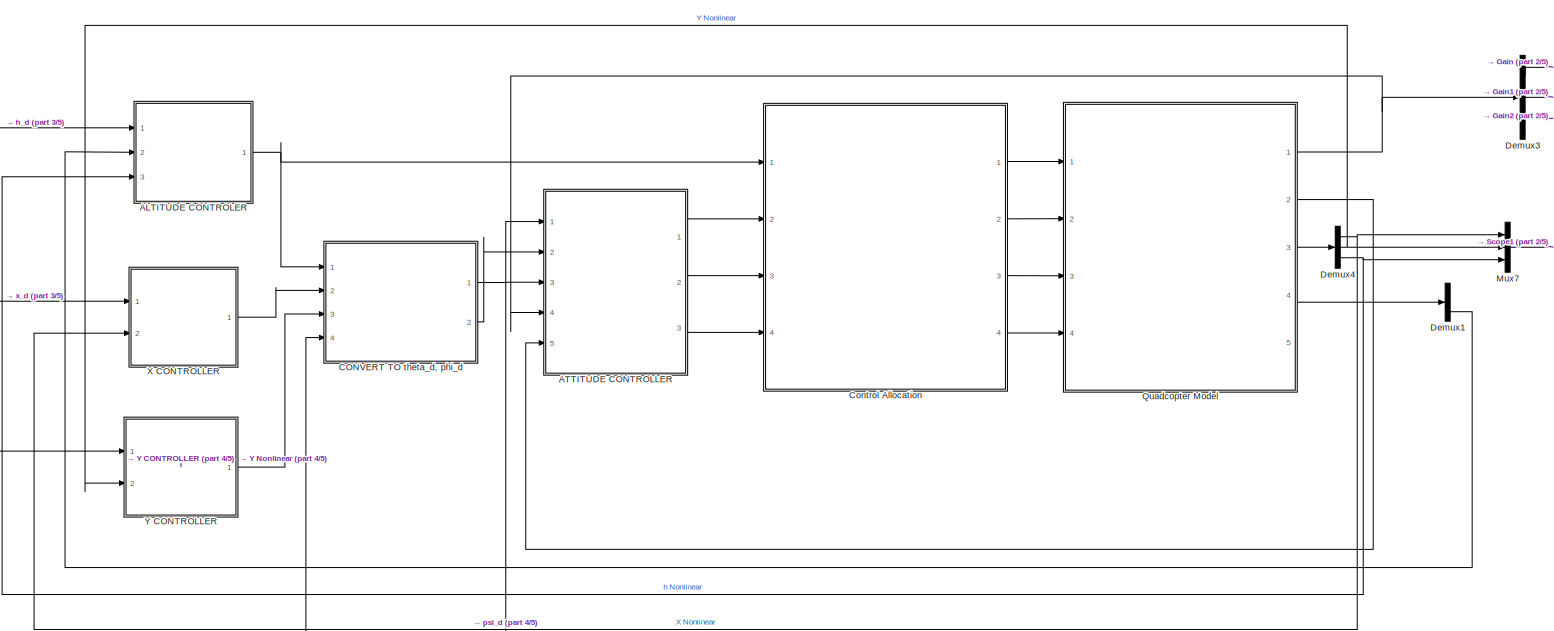
[diagram: root canvas - part 1/5, full width, top band]
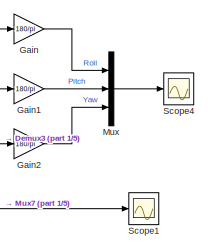
[diagram: root canvas - part 2/5, top right region]
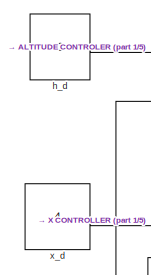
[diagram: root canvas - part 3/5, top left region]
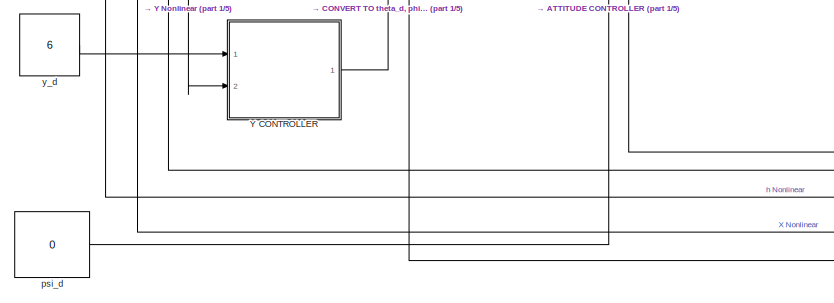
[diagram: root canvas - part 4/5, middle left region]
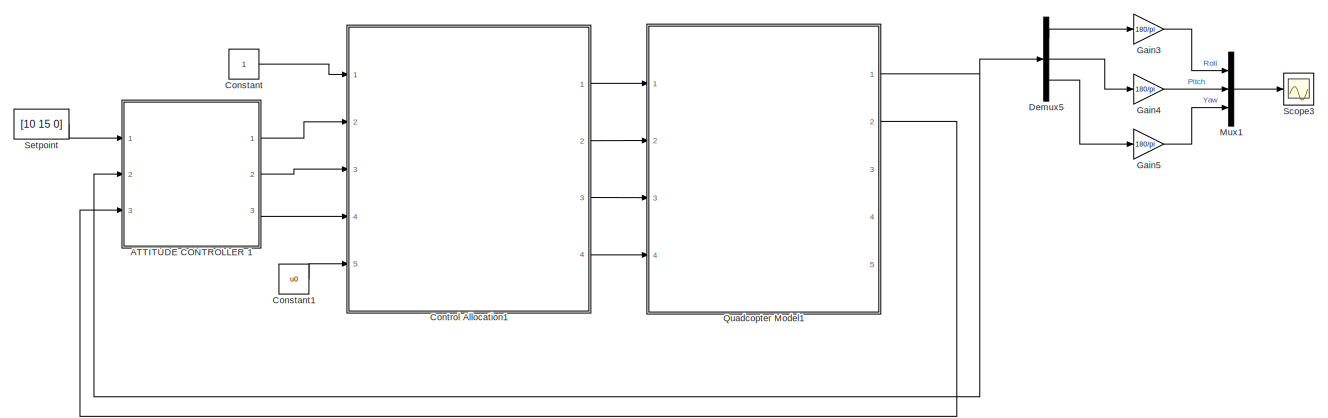
[diagram: root canvas - part 5/5, bottom center region]
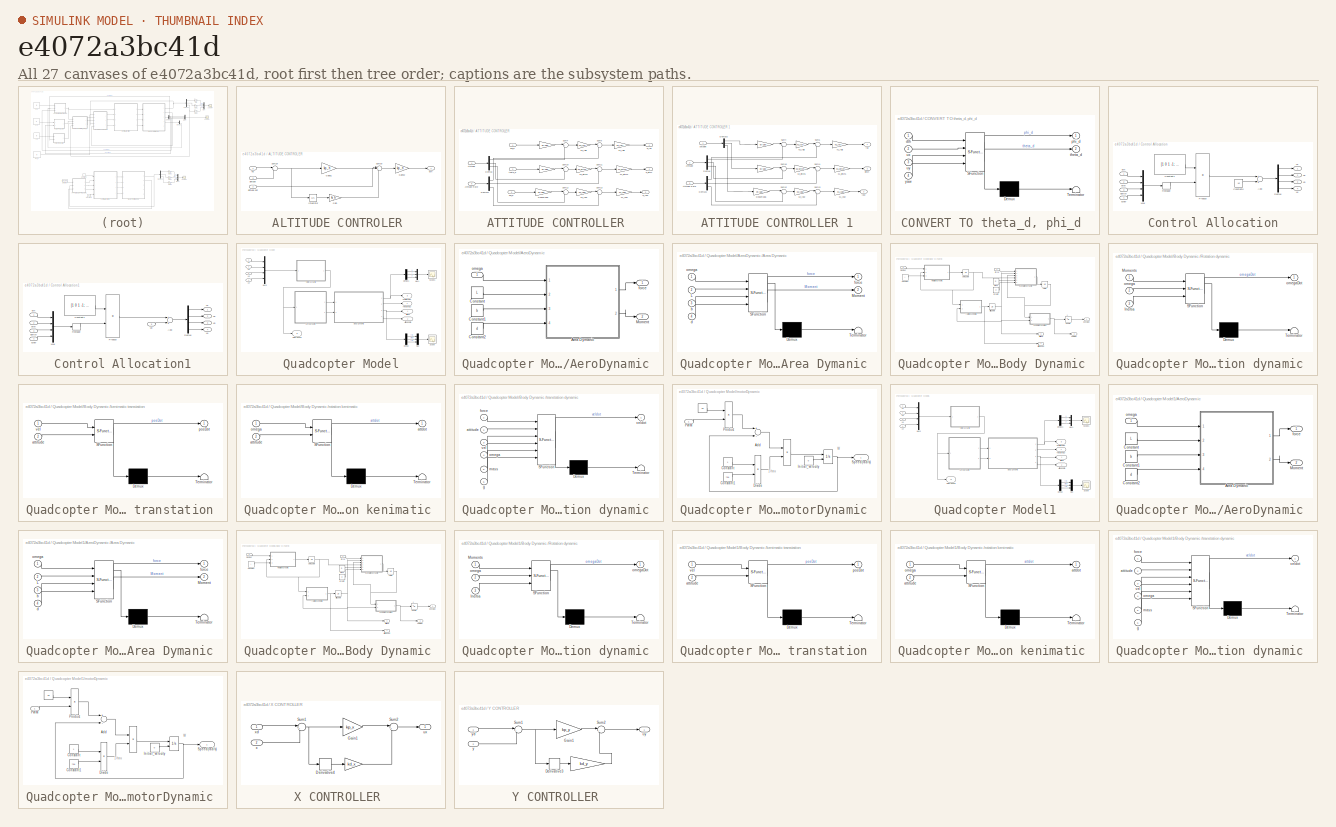
[diagram: thumbnail index - all 27 canvases of the model, root first then tree order]
MODEL slx_e4072a3bc41d
KIND model
CONFIG AbsTol = auto
CONFIG FixedStep = auto
CONFIG InitFcn = parameters
CONFIG MaxStep = auto
CONFIG MinStep = auto
CONFIG PreLoadFcn = parameters
CONFIG RelTol = 1e-3
CONFIG SampleTimeConstraint = Unconstrained
CONFIG Solver = VariableStepAuto
CONFIG SolverMode = Auto
CONFIG SolverName = VariableStepAuto
CONFIG StartTime = 0.0
CONFIG StopTime = 30
BLOCK [SubSystem] ALTITUDE CONTROLER 
  Ports = [3, 1]
  RequestExecContextInheritance = off
  Variant = off
BLOCK [Gain] ALTITUDE CONTROLER /Gain
  Gain = ki_h
  OutDataTypeStr = Inherit: Inherit via internal rule
  ParamDataTypeStr = Inherit: Inherit via internal rule
  SaturateOnIntegerOverflow = off
BLOCK [Gain] ALTITUDE CONTROLER /Gain31
  Gain = kp_h
  OutDataTypeStr = Inherit: Inherit via internal rule
  ParamDataTypeStr = Inherit: Inherit via internal rule
  SaturateOnIntegerOverflow = off
BLOCK [Gain] ALTITUDE CONTROLER /Gain32
  Gain = kp_h
  OutDataTypeStr = Inherit: Inherit via internal rule
  ParamDataTypeStr = Inherit: Inherit via internal rule
  SaturateOnIntegerOverflow = off
BLOCK [Integrator] ALTITUDE CONTROLER /Integrator
  Ports = [1, 1]
BLOCK [Sum] ALTITUDE CONTROLER /Sum29
  IconShape = round
  InputSameDT = off
  Inputs = |++
  OutDataTypeStr = Inherit: Inherit via internal rule
  Ports = [2, 1]
  SaturateOnIntegerOverflow = off
BLOCK [Sum] ALTITUDE CONTROLER /Sum30
  IconShape = round
  InputSameDT = off
  Inputs = |+++
  OutDataTypeStr = Inherit: Inherit via internal rule
  Ports = [3, 1]
  SaturateOnIntegerOverflow = off
BLOCK [Inport] ALTITUDE CONTROLER /altitude 
  Description = hd
  IconDisplay = Port number
  Port = 3
BLOCK [Inport] ALTITUDE CONTROLER /altitude dot 
  Description = hd
  IconDisplay = Port number
  Port = 2
BLOCK [Outport] ALTITUDE CONTROLER /dth
  IconDisplay = Port number
BLOCK [Inport] ALTITUDE CONTROLER /hd
  Description = hd
  IconDisplay = Port number
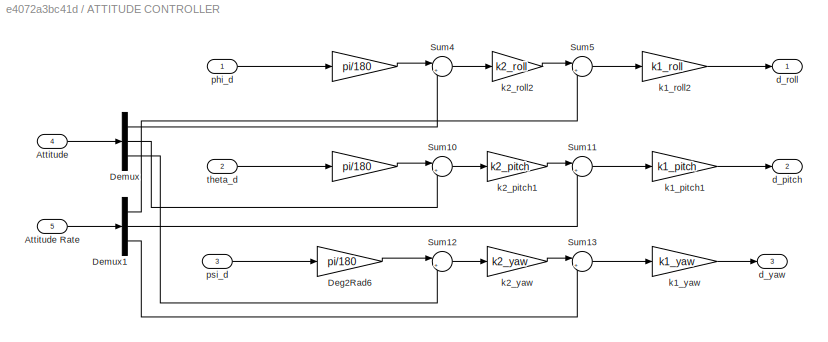
BLOCK [SubSystem] ATTITUDE CONTROLLER 
  Ports = [5, 3]
  RequestExecContextInheritance = off
  Variant = off
BLOCK [Gain] ATTITUDE CONTROLLER / 
  Gain = pi/180
  OutDataTypeStr = Inherit: Inherit via internal rule
  ParamDataTypeStr = Inherit: Inherit via internal rule
  SaturateOnIntegerOverflow = off
BLOCK [Inport] ATTITUDE CONTROLLER /Attitude 
  IconDisplay = Port number
  Port = 4
BLOCK [Inport] ATTITUDE CONTROLLER /Attitude Rate 
  IconDisplay = Port number
  Port = 5
BLOCK [Gain] ATTITUDE CONTROLLER /Deg2Rad6
  Gain = pi/180
  OutDataTypeStr = Inherit: Inherit via internal rule
  ParamDataTypeStr = Inherit: Inherit via internal rule
  SaturateOnIntegerOverflow = off
BLOCK [Demux] ATTITUDE CONTROLLER /Demux
  DisplayOption = bar
  Outputs = 3
  Ports = [1, 3]
BLOCK [Demux] ATTITUDE CONTROLLER /Demux1
  DisplayOption = bar
  Outputs = 3
  Ports = [1, 3]
BLOCK [Sum] ATTITUDE CONTROLLER /Sum10
  IconShape = round
  InputSameDT = off
  Inputs = |+-
  OutDataTypeStr = Inherit: Inherit via internal rule
  Ports = [2, 1]
  SaturateOnIntegerOverflow = off
BLOCK [Sum] ATTITUDE CONTROLLER /Sum11
  IconShape = round
  InputSameDT = off
  Inputs = |+-
  OutDataTypeStr = Inherit: Inherit via internal rule
  Ports = [2, 1]
  SaturateOnIntegerOverflow = off
BLOCK [Sum] ATTITUDE CONTROLLER /Sum12
  IconShape = round
  InputSameDT = off
  Inputs = |+-
  OutDataTypeStr = Inherit: Inherit via internal rule
  Ports = [2, 1]
  SaturateOnIntegerOverflow = off
BLOCK [Sum] ATTITUDE CONTROLLER /Sum13
  IconShape = round
  InputSameDT = off
  Inputs = |+-
  OutDataTypeStr = Inherit: Inherit via internal rule
  Ports = [2, 1]
  SaturateOnIntegerOverflow = off
BLOCK [Sum] ATTITUDE CONTROLLER /Sum4
  IconShape = round
  InputSameDT = off
  Inputs = |+-
  OutDataTypeStr = Inherit: Inherit via internal rule
  Ports = [2, 1]
  SaturateOnIntegerOverflow = off
BLOCK [Sum] ATTITUDE CONTROLLER /Sum5
  IconShape = round
  InputSameDT = off
  Inputs = |+-
  OutDataTypeStr = Inherit: Inherit via internal rule
  Ports = [2, 1]
  SaturateOnIntegerOverflow = off
BLOCK [Outport] ATTITUDE CONTROLLER /d_pitch 
  IconDisplay = Port number
  Port = 2
BLOCK [Outport] ATTITUDE CONTROLLER /d_roll 
  IconDisplay = Port number
BLOCK [Outport] ATTITUDE CONTROLLER /d_yaw 
  IconDisplay = Port number
  Port = 3
BLOCK [Gain] ATTITUDE CONTROLLER /k1_pitch1
  Gain = k1_pitch
  OutDataTypeStr = Inherit: Inherit via internal rule
  ParamDataTypeStr = Inherit: Inherit via internal rule
  SaturateOnIntegerOverflow = off
BLOCK [Gain] ATTITUDE CONTROLLER /k1_roll2
  Gain = k1_roll
  OutDataTypeStr = Inherit: Inherit via internal rule
  ParamDataTypeStr = Inherit: Inherit via internal rule
  SaturateOnIntegerOverflow = off
BLOCK [Gain] ATTITUDE CONTROLLER /k1_yaw
  Gain = k1_yaw
  OutDataTypeStr = Inherit: Inherit via internal rule
  ParamDataTypeStr = Inherit: Inherit via internal rule
  SaturateOnIntegerOverflow = off
BLOCK [Gain] ATTITUDE CONTROLLER /k2_pitch1
  Gain = k2_pitch
  OutDataTypeStr = Inherit: Inherit via internal rule
  ParamDataTypeStr = Inherit: Inherit via internal rule
  SaturateOnIntegerOverflow = off
BLOCK [Gain] ATTITUDE CONTROLLER /k2_roll2
  Gain = k2_roll
  OutDataTypeStr = Inherit: Inherit via internal rule
  ParamDataTypeStr = Inherit: Inherit via internal rule
  SaturateOnIntegerOverflow = off
BLOCK [Gain] ATTITUDE CONTROLLER /k2_yaw
  Gain = k2_yaw
  OutDataTypeStr = Inherit: Inherit via internal rule
  ParamDataTypeStr = Inherit: Inherit via internal rule
  SaturateOnIntegerOverflow = off
BLOCK [Inport] ATTITUDE CONTROLLER /phi_d
  IconDisplay = Port number
BLOCK [Inport] ATTITUDE CONTROLLER /psi_d 
  IconDisplay = Port number
  Port = 3
BLOCK [Inport] ATTITUDE CONTROLLER /theta_d
  IconDisplay = Port number
  Port = 2
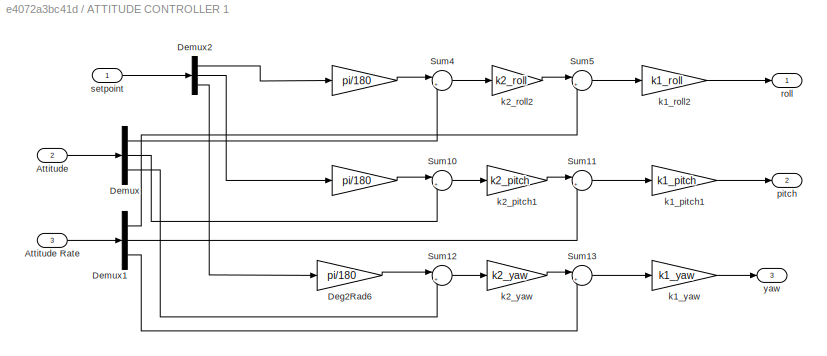
BLOCK [SubSystem] ATTITUDE CONTROLLER 1
  Ports = [3, 3]
  RequestExecContextInheritance = off
  Variant = off
BLOCK [Gain] ATTITUDE CONTROLLER 1/ 
  Gain = pi/180
  OutDataTypeStr = Inherit: Inherit via internal rule
  ParamDataTypeStr = Inherit: Inherit via internal rule
  SaturateOnIntegerOverflow = off
BLOCK [Inport] ATTITUDE CONTROLLER 1/Attitude 
  IconDisplay = Port number
  Port = 2
BLOCK [Inport] ATTITUDE CONTROLLER 1/Attitude Rate 
  IconDisplay = Port number
  Port = 3
BLOCK [Gain] ATTITUDE CONTROLLER 1/Deg2Rad6
  Gain = pi/180
  OutDataTypeStr = Inherit: Inherit via internal rule
  ParamDataTypeStr = Inherit: Inherit via internal rule
  SaturateOnIntegerOverflow = off
BLOCK [Demux] ATTITUDE CONTROLLER 1/Demux
  DisplayOption = bar
  Outputs = 3
  Ports = [1, 3]
BLOCK [Demux] ATTITUDE CONTROLLER 1/Demux1
  DisplayOption = bar
  Outputs = 3
  Ports = [1, 3]
BLOCK [Demux] ATTITUDE CONTROLLER 1/Demux2
  DisplayOption = bar
  Outputs = 3
  Ports = [1, 3]
BLOCK [Sum] ATTITUDE CONTROLLER 1/Sum10
  IconShape = round
  InputSameDT = off
  Inputs = |+-
  OutDataTypeStr = Inherit: Inherit via internal rule
  Ports = [2, 1]
  SaturateOnIntegerOverflow = off
BLOCK [Sum] ATTITUDE CONTROLLER 1/Sum11
  IconShape = round
  InputSameDT = off
  Inputs = |+-
  OutDataTypeStr = Inherit: Inherit via internal rule
  Ports = [2, 1]
  SaturateOnIntegerOverflow = off
BLOCK [Sum] ATTITUDE CONTROLLER 1/Sum12
  IconShape = round
  InputSameDT = off
  Inputs = |+-
  OutDataTypeStr = Inherit: Inherit via internal rule
  Ports = [2, 1]
  SaturateOnIntegerOverflow = off
BLOCK [Sum] ATTITUDE CONTROLLER 1/Sum13
  IconShape = round
  InputSameDT = off
  Inputs = |+-
  OutDataTypeStr = Inherit: Inherit via internal rule
  Ports = [2, 1]
  SaturateOnIntegerOverflow = off
BLOCK [Sum] ATTITUDE CONTROLLER 1/Sum4
  IconShape = round
  InputSameDT = off
  Inputs = |+-
  OutDataTypeStr = Inherit: Inherit via internal rule
  Ports = [2, 1]
  SaturateOnIntegerOverflow = off
BLOCK [Sum] ATTITUDE CONTROLLER 1/Sum5
  IconShape = round
  InputSameDT = off
  Inputs = |+-
  OutDataTypeStr = Inherit: Inherit via internal rule
  Ports = [2, 1]
  SaturateOnIntegerOverflow = off
BLOCK [Gain] ATTITUDE CONTROLLER 1/k1_pitch1
  Gain = k1_pitch
  OutDataTypeStr = Inherit: Inherit via internal rule
  ParamDataTypeStr = Inherit: Inherit via internal rule
  SaturateOnIntegerOverflow = off
BLOCK [Gain] ATTITUDE CONTROLLER 1/k1_roll2
  Gain = k1_roll
  OutDataTypeStr = Inherit: Inherit via internal rule
  ParamDataTypeStr = Inherit: Inherit via internal rule
  SaturateOnIntegerOverflow = off
BLOCK [Gain] ATTITUDE CONTROLLER 1/k1_yaw
  Gain = k1_yaw
  OutDataTypeStr = Inherit: Inherit via internal rule
  ParamDataTypeStr = Inherit: Inherit via internal rule
  SaturateOnIntegerOverflow = off
BLOCK [Gain] ATTITUDE CONTROLLER 1/k2_pitch1
  Gain = k2_pitch
  OutDataTypeStr = Inherit: Inherit via internal rule
  ParamDataTypeStr = Inherit: Inherit via internal rule
  SaturateOnIntegerOverflow = off
BLOCK [Gain] ATTITUDE CONTROLLER 1/k2_roll2
  Gain = k2_roll
  OutDataTypeStr = Inherit: Inherit via internal rule
  ParamDataTypeStr = Inherit: Inherit via internal rule
  SaturateOnIntegerOverflow = off
BLOCK [Gain] ATTITUDE CONTROLLER 1/k2_yaw
  Gain = k2_yaw
  OutDataTypeStr = Inherit: Inherit via internal rule
  ParamDataTypeStr = Inherit: Inherit via internal rule
  SaturateOnIntegerOverflow = off
BLOCK [Outport] ATTITUDE CONTROLLER 1/pitch 
  IconDisplay = Port number
  Port = 2
BLOCK [Outport] ATTITUDE CONTROLLER 1/roll 
  IconDisplay = Port number
BLOCK [Inport] ATTITUDE CONTROLLER 1/setpoint 
  IconDisplay = Port number
BLOCK [Outport] ATTITUDE CONTROLLER 1/yaw 
  IconDisplay = Port number
  Port = 3
BLOCK [SubSystem] CONVERT TO theta_d, phi_d 
  ErrorFcn = Stateflow.Translate.translate
  PermitHierarchicalResolution = ExplicitOnly
  Ports = [4, 2]
  RequestExecContextInheritance = off
  SFBlockType = MATLAB Function
  TreatAsAtomicUnit = on
  Variant = off
BLOCK [Demux] CONVERT TO theta_d, phi_d / Demux 
  DisplayOption = bar
  Outputs = 1
  Ports = [1, 1]
BLOCK [S-Function] CONVERT TO theta_d, phi_d / SFunction 
  EnableBusSupport = on
  FunctionName = sf_sfun
  PortCounts = [4 3]
  Ports = [4, 3]
  SFunctionDeploymentMode = off
  Tag = Stateflow S-Function Control_UAV_Phat 12
BLOCK [Terminator] CONVERT TO theta_d, phi_d / Terminator 
BLOCK [Inport] CONVERT TO theta_d, phi_d /dth
  IconDisplay = Port number
BLOCK [Outport] CONVERT TO theta_d, phi_d /phi_d
  IconDisplay = Port number
BLOCK [Outport] CONVERT TO theta_d, phi_d /theta_d
  IconDisplay = Port number
  Port = 2
BLOCK [Inport] CONVERT TO theta_d, phi_d /ux
  IconDisplay = Port number
  Port = 2
BLOCK [Inport] CONVERT TO theta_d, phi_d /uy
  IconDisplay = Port number
  Port = 3
BLOCK [Inport] CONVERT TO theta_d, phi_d /yaw
  IconDisplay = Port number
  Port = 4
BLOCK [Constant] Constant
BLOCK [Constant] Constant1
  Value = u0
BLOCK [SubSystem] Control Allocation
  Ports = [4, 4]
  RequestExecContextInheritance = off
  Variant = off
BLOCK [Sum] Control Allocation/Add
  InputSameDT = off
  OutDataTypeStr = Inherit: Inherit via internal rule
  Ports = [2, 1]
  SaturateOnIntegerOverflow = off
BLOCK [Constant] Control Allocation/Constant1
  Value = [1 0 1 -1; 1 -1 0 1; 1 0 -1 -1; 1 1 0 1]
BLOCK [Constant] Control Allocation/Constant6
  Value = u0
BLOCK [Demux] Control Allocation/Demux
  DisplayOption = bar
  Ports = [1, 4]
BLOCK [Mux] Control Allocation/Mux
  DisplayOption = bar
  Ports = [4, 1]
BLOCK [Product] Control Allocation/Product
  InputSameDT = off
  Multiplication = Matrix(*)
  OutDataTypeStr = Inherit: Inherit via internal rule
  Ports = [2, 1]
  RndMeth = Floor
  SaturateOnIntegerOverflow = off
BLOCK [Reshape] Control Allocation/Reshape
  OutputDimensionality = Column vector (2-D)
  Ports = [1, 1]
BLOCK [Inport] Control Allocation/dpitch
  IconDisplay = Port number
  Port = 3
BLOCK [Inport] Control Allocation/droll
  IconDisplay = Port number
  Port = 2
BLOCK [Inport] Control Allocation/dth
  IconDisplay = Port number
BLOCK [Inport] Control Allocation/dyaw
  IconDisplay = Port number
  Port = 4
BLOCK [Outport] Control Allocation/u1 
  IconDisplay = Port number
BLOCK [Outport] Control Allocation/u2 
  IconDisplay = Port number
  Port = 2
BLOCK [Outport] Control Allocation/u3 
  IconDisplay = Port number
  Port = 3
BLOCK [Outport] Control Allocation/u4 
  IconDisplay = Port number
  Port = 4
BLOCK [SubSystem] Control Allocation1
  Ports = [5, 4]
  RequestExecContextInheritance = off
  Variant = off
BLOCK [Sum] Control Allocation1/Add
  InputSameDT = off
  OutDataTypeStr = Inherit: Inherit via internal rule
  Ports = [2, 1]
  SaturateOnIntegerOverflow = off
BLOCK [Constant] Control Allocation1/Constant1
  Value = [1 0 1 -1; 1 -1 0 1; 1 0 -1 -1; 1 1 0 1]
BLOCK [Demux] Control Allocation1/Demux
  DisplayOption = bar
  Ports = [1, 4]
BLOCK [Mux] Control Allocation1/Mux
  DisplayOption = bar
  Ports = [4, 1]
BLOCK [Product] Control Allocation1/Product
  InputSameDT = off
  Multiplication = Matrix(*)
  OutDataTypeStr = Inherit: Inherit via internal rule
  Ports = [2, 1]
  RndMeth = Floor
  SaturateOnIntegerOverflow = off
BLOCK [Reshape] Control Allocation1/Reshape
  OutputDimensionality = Column vector (2-D)
  Ports = [1, 1]
BLOCK [Inport] Control Allocation1/dpitch
  IconDisplay = Port number
  Port = 3
BLOCK [Inport] Control Allocation1/droll
  IconDisplay = Port number
  Port = 2
BLOCK [Inport] Control Allocation1/dth
  IconDisplay = Port number
BLOCK [Inport] Control Allocation1/dyaw
  IconDisplay = Port number
  Port = 4
BLOCK [Inport] Control Allocation1/u0 
  IconDisplay = Port number
  Port = 5
BLOCK [Outport] Control Allocation1/u1 
  IconDisplay = Port number
BLOCK [Outport] Control Allocation1/u2 
  IconDisplay = Port number
  Port = 2
BLOCK [Outport] Control Allocation1/u3 
  IconDisplay = Port number
  Port = 3
BLOCK [Outport] Control Allocation1/u4 
  IconDisplay = Port number
  Port = 4
BLOCK [Demux] Demux1
  DisplayOption = bar
  Outputs = 3
  Ports = [1, 3]
BLOCK [Demux] Demux3
  DisplayOption = bar
  Outputs = 3
  Ports = [1, 3]
BLOCK [Demux] Demux4
  DisplayOption = bar
  Outputs = 3
  Ports = [1, 3]
BLOCK [Demux] Demux5
  DisplayOption = bar
  Outputs = 3
  Ports = [1, 3]
BLOCK [Gain] Gain
  Gain = 180/pi
  OutDataTypeStr = Inherit: Inherit via internal rule
  ParamDataTypeStr = Inherit: Inherit via internal rule
  SaturateOnIntegerOverflow = off
BLOCK [Gain] Gain1
  Gain = 180/pi
  OutDataTypeStr = Inherit: Inherit via internal rule
  ParamDataTypeStr = Inherit: Inherit via internal rule
  SaturateOnIntegerOverflow = off
BLOCK [Gain] Gain2
  Gain = 180/pi
  OutDataTypeStr = Inherit: Inherit via internal rule
  ParamDataTypeStr = Inherit: Inherit via internal rule
  SaturateOnIntegerOverflow = off
BLOCK [Gain] Gain3
  Gain = 180/pi
  OutDataTypeStr = Inherit: Inherit via internal rule
  ParamDataTypeStr = Inherit: Inherit via internal rule
  SaturateOnIntegerOverflow = off
BLOCK [Gain] Gain4
  Gain = 180/pi
  OutDataTypeStr = Inherit: Inherit via internal rule
  ParamDataTypeStr = Inherit: Inherit via internal rule
  SaturateOnIntegerOverflow = off
BLOCK [Gain] Gain5
  Gain = 180/pi
  OutDataTypeStr = Inherit: Inherit via internal rule
  ParamDataTypeStr = Inherit: Inherit via internal rule
  SaturateOnIntegerOverflow = off
BLOCK [Mux] Mux
  DisplayOption = bar
  Inputs = 3
  Ports = [3, 1]
BLOCK [Mux] Mux1
  DisplayOption = bar
  Inputs = 3
  Ports = [3, 1]
BLOCK [Mux] Mux7
  DisplayOption = bar
  Inputs = 3
  Ports = [3, 1]
BLOCK [SubSystem] Quadcopter Model
  Ports = [4, 5]
  RequestExecContextInheritance = off
  Variant = off
BLOCK [SubSystem] Quadcopter Model/AeroDynamic 
  Ports = [1, 2]
  RequestExecContextInheritance = off
  Variant = off
BLOCK [SubSystem] Quadcopter Model/AeroDynamic /Area Dymanic 
  ErrorFcn = Stateflow.Translate.translate
  PermitHierarchicalResolution = ExplicitOnly
  Ports = [4, 2]
  RequestExecContextInheritance = off
  SFBlockType = MATLAB Function
  TreatAsAtomicUnit = on
  Variant = off
BLOCK [Demux] Quadcopter Model/AeroDynamic /Area Dymanic / Demux 
  DisplayOption = bar
  Outputs = 1
  Ports = [1, 1]
BLOCK [S-Function] Quadcopter Model/AeroDynamic /Area Dymanic / SFunction 
  EnableBusSupport = on
  FunctionName = sf_sfun
  PortCounts = [4 3]
  Ports = [4, 3]
  SFunctionDeploymentMode = off
  Tag = Stateflow S-Function Control_UAV_Phat 6
BLOCK [Terminator] Quadcopter Model/AeroDynamic /Area Dymanic / Terminator 
BLOCK [Inport] Quadcopter Model/AeroDynamic /Area Dymanic /L
  IconDisplay = Port number
  Port = 2
BLOCK [Outport] Quadcopter Model/AeroDynamic /Area Dymanic /Moment
  IconDisplay = Port number
  Port = 2
BLOCK [Inport] Quadcopter Model/AeroDynamic /Area Dymanic /b
  IconDisplay = Port number
  Port = 3
BLOCK [Inport] Quadcopter Model/AeroDynamic /Area Dymanic /d
  IconDisplay = Port number
  Port = 4
BLOCK [Outport] Quadcopter Model/AeroDynamic /Area Dymanic /force
  IconDisplay = Port number
BLOCK [Inport] Quadcopter Model/AeroDynamic /Area Dymanic /omega
  IconDisplay = Port number
BLOCK [Constant] Quadcopter Model/AeroDynamic /Constant
  Value = L
BLOCK [Constant] Quadcopter Model/AeroDynamic /Constant1
  Value = b
BLOCK [Constant] Quadcopter Model/AeroDynamic /Constant2
  Value = d
BLOCK [Outport] Quadcopter Model/AeroDynamic /Moment
  IconDisplay = Port number
  Port = 2
BLOCK [Outport] Quadcopter Model/AeroDynamic /force
  IconDisplay = Port number
BLOCK [Inport] Quadcopter Model/AeroDynamic /omega 
  IconDisplay = Port number
BLOCK [Outport] Quadcopter Model/AtitudeRate
  IconDisplay = Port number
  Port = 2
BLOCK [Outport] Quadcopter Model/Attitude
  IconDisplay = Port number
BLOCK [SubSystem] Quadcopter Model/Body Dynamic 
  Ports = [2, 4]
  RequestExecContextInheritance = off
  Variant = off
BLOCK [Integrator] Quadcopter Model/Body Dynamic /AttitudeInit 
  InitialCondition = attitudeInit
  Ports = [1, 1]
BLOCK [Constant] Quadcopter Model/Body Dynamic /Constant
  Value = I
BLOCK [Integrator] Quadcopter Model/Body Dynamic /OmegaInit 
  InitialCondition = omegaInit
  Ports = [1, 1]
BLOCK [SubSystem] Quadcopter Model/Body Dynamic /Rotation dynamic 
  ErrorFcn = Stateflow.Translate.translate
  PermitHierarchicalResolution = ExplicitOnly
  Ports = [3, 1]
  RequestExecContextInheritance = off
  SFBlockType = MATLAB Function
  TreatAsAtomicUnit = on
  Variant = off
BLOCK [Demux] Quadcopter Model/Body Dynamic /Rotation dynamic / Demux 
  DisplayOption = bar
  Outputs = 1
  Ports = [1, 1]
BLOCK [S-Function] Quadcopter Model/Body Dynamic /Rotation dynamic / SFunction 
  EnableBusSupport = on
  FunctionName = sf_sfun
  PortCounts = [3 2]
  Ports = [3, 2]
  SFunctionDeploymentMode = off
  Tag = Stateflow S-Function Control_UAV_Phat 7
BLOCK [Terminator] Quadcopter Model/Body Dynamic /Rotation dynamic / Terminator 
BLOCK [Inport] Quadcopter Model/Body Dynamic /Rotation dynamic /Inertia
  IconDisplay = Port number
  Port = 3
BLOCK [Inport] Quadcopter Model/Body Dynamic /Rotation dynamic /Moments
  IconDisplay = Port number
BLOCK [Inport] Quadcopter Model/Body Dynamic /Rotation dynamic /omega
  IconDisplay = Port number
  Port = 2
BLOCK [Outport] Quadcopter Model/Body Dynamic /Rotation dynamic /omegaDot
  IconDisplay = Port number
BLOCK [Outport] Quadcopter Model/Body Dynamic /attitude 
  IconDisplay = Port number
  Port = 3
BLOCK [Outport] Quadcopter Model/Body Dynamic /attitudeDOt 
  IconDisplay = Port number
  Port = 4
BLOCK [Inport] Quadcopter Model/Body Dynamic /force 
  IconDisplay = Port number
BLOCK [Constant] Quadcopter Model/Body Dynamic /gravity 
  Value = g
BLOCK [SubSystem] Quadcopter Model/Body Dynamic /kenimatic transtation 
  ErrorFcn = Stateflow.Translate.translate
  PermitHierarchicalResolution = ExplicitOnly
  Ports = [2, 1]
  RequestExecContextInheritance = off
  SFBlockType = MATLAB Function
  TreatAsAtomicUnit = on
  Variant = off
BLOCK [Demux] Quadcopter Model/Body Dynamic /kenimatic transtation / Demux 
  DisplayOption = bar
  Outputs = 1
  Ports = [1, 1]
BLOCK [S-Function] Quadcopter Model/Body Dynamic /kenimatic transtation / SFunction 
  EnableBusSupport = on
  FunctionName = sf_sfun
  PortCounts = [2 2]
  Ports = [2, 2]
  SFunctionDeploymentMode = off
  Tag = Stateflow S-Function Control_UAV_Phat 8
BLOCK [Terminator] Quadcopter Model/Body Dynamic /kenimatic transtation / Terminator 
BLOCK [Inport] Quadcopter Model/Body Dynamic /kenimatic transtation /attitude
  IconDisplay = Port number
  Port = 2
BLOCK [Outport] Quadcopter Model/Body Dynamic /kenimatic transtation /posDot
  IconDisplay = Port number
BLOCK [Inport] Quadcopter Model/Body Dynamic /kenimatic transtation /vel
  IconDisplay = Port number
BLOCK [Constant] Quadcopter Model/Body Dynamic /mass
  Value = m
BLOCK [Inport] Quadcopter Model/Body Dynamic /momnet 
  IconDisplay = Port number
  Port = 2
BLOCK [Integrator] Quadcopter Model/Body Dynamic /posInit 
  InitialCondition = posInit
  Ports = [1, 1]
BLOCK [Outport] Quadcopter Model/Body Dynamic /posNED
  IconDisplay = Port number
BLOCK [SubSystem] Quadcopter Model/Body Dynamic /rotation kenimatic 
  ErrorFcn = Stateflow.Translate.translate
  PermitHierarchicalResolution = ExplicitOnly
  Ports = [2, 1]
  RequestExecContextInheritance = off
  SFBlockType = MATLAB Function
  TreatAsAtomicUnit = on
  Variant = off
BLOCK [Demux] Quadcopter Model/Body Dynamic /rotation kenimatic / Demux 
  DisplayOption = bar
  Outputs = 1
  Ports = [1, 1]
BLOCK [S-Function] Quadcopter Model/Body Dynamic /rotation kenimatic / SFunction 
  EnableBusSupport = on
  FunctionName = sf_sfun
  PortCounts = [2 2]
  Ports = [2, 2]
  SFunctionDeploymentMode = off
  Tag = Stateflow S-Function Control_UAV_Phat 9
BLOCK [Terminator] Quadcopter Model/Body Dynamic /rotation kenimatic / Terminator 
BLOCK [Outport] Quadcopter Model/Body Dynamic /rotation kenimatic /attdot
  IconDisplay = Port number
BLOCK [Inport] Quadcopter Model/Body Dynamic /rotation kenimatic /attitude
  IconDisplay = Port number
  Port = 2
BLOCK [Inport] Quadcopter Model/Body Dynamic /rotation kenimatic /omega
  IconDisplay = Port number
BLOCK [SubSystem] Quadcopter Model/Body Dynamic /transtation dynamic 
  ErrorFcn = Stateflow.Translate.translate
  PermitHierarchicalResolution = ExplicitOnly
  Ports = [6, 1]
  RequestExecContextInheritance = off
  SFBlockType = MATLAB Function
  TreatAsAtomicUnit = on
  Variant = off
BLOCK [Demux] Quadcopter Model/Body Dynamic /transtation dynamic / Demux 
  DisplayOption = bar
  Outputs = 1
  Ports = [1, 1]
BLOCK [S-Function] Quadcopter Model/Body Dynamic /transtation dynamic / SFunction 
  EnableBusSupport = on
  FunctionName = sf_sfun
  PortCounts = [6 2]
  Ports = [6, 2]
  SFunctionDeploymentMode = off
  Tag = Stateflow S-Function Control_UAV_Phat 10
BLOCK [Terminator] Quadcopter Model/Body Dynamic /transtation dynamic / Terminator 
BLOCK [Inport] Quadcopter Model/Body Dynamic /transtation dynamic /attitude
  IconDisplay = Port number
  Port = 2
BLOCK [Inport] Quadcopter Model/Body Dynamic /transtation dynamic /force
  IconDisplay = Port number
BLOCK [Inport] Quadcopter Model/Body Dynamic /transtation dynamic /g
  IconDisplay = Port number
  Port = 6
BLOCK [Inport] Quadcopter Model/Body Dynamic /transtation dynamic /mass
  IconDisplay = Port number
  Port = 5
BLOCK [Inport] Quadcopter Model/Body Dynamic /transtation dynamic /omega
  IconDisplay = Port number
  Port = 4
BLOCK [Inport] Quadcopter Model/Body Dynamic /transtation dynamic /vel
  IconDisplay = Port number
  Port = 3
BLOCK [Outport] Quadcopter Model/Body Dynamic /transtation dynamic /veldot
  IconDisplay = Port number
BLOCK [Integrator] Quadcopter Model/Body Dynamic /velInit 
  InitialCondition = velInit
  Ports = [1, 1]
BLOCK [Outport] Quadcopter Model/Body Dynamic /velNED
  IconDisplay = Port number
  Port = 2
BLOCK [Demux] Quadcopter Model/Demux
  DisplayOption = bar
  Outputs = 3
  Ports = [1, 3]
BLOCK [Demux] Quadcopter Model/Demux1
  DisplayOption = bar
  Outputs = 3
  Ports = [1, 3]
BLOCK [Mux] Quadcopter Model/Mux
  DisplayOption = bar
  Inputs = 3
  Ports = [3, 1]
BLOCK [Mux] Quadcopter Model/Mux1
  DisplayOption = bar
  Inputs = 3
  Ports = [3, 1]
BLOCK [Mux] Quadcopter Model/Mux3
  DisplayOption = bar
  Ports = [4, 1]
BLOCK [Scope] Quadcopter Model/Scope
  Ports = [1]
  ScopeSpecificationString = Simulink.scopes.TimeScopeBlockCfg('CurrentConfiguration', extmgr.ConfigurationSet(extmgr.Configuration('Core','General UI',true),extmgr.Configuration('Core','Source UI',true),extmgr.Configuration('Sources','WiredSimulink',true),extmgr.Configuration('Visuals','Time Domain',true,'TimeAxisLabels','All','SerializedDisplays',{struct('MinYLimReal','-1','MaxYLimReal','1','YLabelReal','','MinYLimMag','0.0...<+1504ch>
BLOCK [Scope] Quadcopter Model/Scope1
  Ports = [1]
  ScopeSpecificationString = Simulink.scopes.TimeScopeBlockCfg('CurrentConfiguration', extmgr.ConfigurationSet(extmgr.Configuration('Core','General UI',true),extmgr.Configuration('Core','Source UI',true),extmgr.Configuration('Sources','WiredSimulink',true,'DataLoggingVariableName','ScopeData1'),extmgr.Configuration('Visuals','Time Domain',true,'SerializedDisplays',{struct('MinYLimReal','-6.9571','MaxYLimReal','12.43776','YLab...<+1538ch>
BLOCK [SubSystem] Quadcopter Model/motorDynamic 
  Ports = [1, 1]
  RequestExecContextInheritance = off
  Variant = off
BLOCK [Integrator] Quadcopter Model/motorDynamic / 
  InitialConditionSource = external
  Ports = [2, 1]
BLOCK [Sum] Quadcopter Model/motorDynamic /Add
  InputSameDT = off
  Inputs = +-
  OutDataTypeStr = Inherit: Inherit via internal rule
  Ports = [2, 1]
  SaturateOnIntegerOverflow = off
BLOCK [Constant] Quadcopter Model/motorDynamic /Constant
BLOCK [Constant] Quadcopter Model/motorDynamic /Constant1
  Value = tau
BLOCK [Product] Quadcopter Model/motorDynamic /Divide
  InputSameDT = off
  Inputs = */
  OutDataTypeStr = Inherit: Inherit via internal rule
  Ports = [2, 1]
  RndMeth = Floor
  SaturateOnIntegerOverflow = off
BLOCK [Constant] Quadcopter Model/motorDynamic /Initial_velocity 
  Value = 0
BLOCK [Inport] Quadcopter Model/motorDynamic /PWM 
  IconDisplay = Port number
BLOCK [Product] Quadcopter Model/motorDynamic /Product
  InputSameDT = off
  OutDataTypeStr = Inherit: Inherit via internal rule
  Ports = [2, 1]
  RndMeth = Floor
  SaturateOnIntegerOverflow = off
BLOCK [Outport] Quadcopter Model/motorDynamic /Speed(rad//s) 
  IconDisplay = Port number
BLOCK [Outport] Quadcopter Model/motorSpeed 
  IconDisplay = Port number
  Port = 5
BLOCK [Outport] Quadcopter Model/positionNED 
  IconDisplay = Port number
  Port = 3
BLOCK [Inport] Quadcopter Model/u1 
  IconDisplay = Port number
BLOCK [Inport] Quadcopter Model/u2 
  IconDisplay = Port number
  Port = 2
BLOCK [Inport] Quadcopter Model/u3 
  IconDisplay = Port number
  Port = 3
BLOCK [Inport] Quadcopter Model/u4 
  IconDisplay = Port number
  Port = 4
BLOCK [Outport] Quadcopter Model/velocityNED
  IconDisplay = Port number
  Port = 4
BLOCK [SubSystem] Quadcopter Model1
  Ports = [4, 5]
  RequestExecContextInheritance = off
  Variant = off
BLOCK [SubSystem] Quadcopter Model1/AeroDynamic 
  Ports = [1, 2]
  RequestExecContextInheritance = off
  Variant = off
BLOCK [SubSystem] Quadcopter Model1/AeroDynamic /Area Dymanic 
  ErrorFcn = Stateflow.Translate.translate
  PermitHierarchicalResolution = ExplicitOnly
  Ports = [4, 2]
  RequestExecContextInheritance = off
  SFBlockType = MATLAB Function
  TreatAsAtomicUnit = on
  Variant = off
BLOCK [Demux] Quadcopter Model1/AeroDynamic /Area Dymanic / Demux 
  DisplayOption = bar
  Outputs = 1
  Ports = [1, 1]
BLOCK [S-Function] Quadcopter Model1/AeroDynamic /Area Dymanic / SFunction 
  EnableBusSupport = on
  FunctionName = sf_sfun
  PortCounts = [4 3]
  Ports = [4, 3]
  SFunctionDeploymentMode = off
  Tag = Stateflow S-Function Control_UAV_Phat 2
BLOCK [Terminator] Quadcopter Model1/AeroDynamic /Area Dymanic / Terminator 
BLOCK [Inport] Quadcopter Model1/AeroDynamic /Area Dymanic /L
  IconDisplay = Port number
  Port = 2
BLOCK [Outport] Quadcopter Model1/AeroDynamic /Area Dymanic /Moment
  IconDisplay = Port number
  Port = 2
BLOCK [Inport] Quadcopter Model1/AeroDynamic /Area Dymanic /b
  IconDisplay = Port number
  Port = 3
BLOCK [Inport] Quadcopter Model1/AeroDynamic /Area Dymanic /d
  IconDisplay = Port number
  Port = 4
BLOCK [Outport] Quadcopter Model1/AeroDynamic /Area Dymanic /force
  IconDisplay = Port number
BLOCK [Inport] Quadcopter Model1/AeroDynamic /Area Dymanic /omega
  IconDisplay = Port number
BLOCK [Constant] Quadcopter Model1/AeroDynamic /Constant
  Value = L
BLOCK [Constant] Quadcopter Model1/AeroDynamic /Constant1
  Value = b
BLOCK [Constant] Quadcopter Model1/AeroDynamic /Constant2
  Value = d
BLOCK [Outport] Quadcopter Model1/AeroDynamic /Moment
  IconDisplay = Port number
  Port = 2
BLOCK [Outport] Quadcopter Model1/AeroDynamic /force
  IconDisplay = Port number
BLOCK [Inport] Quadcopter Model1/AeroDynamic /omega 
  IconDisplay = Port number
BLOCK [Outport] Quadcopter Model1/AtitudeRate
  IconDisplay = Port number
  Port = 2
BLOCK [Outport] Quadcopter Model1/Attitude
  IconDisplay = Port number
BLOCK [SubSystem] Quadcopter Model1/Body Dynamic 
  Ports = [2, 4]
  RequestExecContextInheritance = off
  Variant = off
BLOCK [Integrator] Quadcopter Model1/Body Dynamic /AttitudeInit 
  InitialCondition = attitudeInit
  Ports = [1, 1]
BLOCK [Constant] Quadcopter Model1/Body Dynamic /Constant
  Value = I
BLOCK [Integrator] Quadcopter Model1/Body Dynamic /OmegaInit 
  InitialCondition = omegaInit
  Ports = [1, 1]
BLOCK [SubSystem] Quadcopter Model1/Body Dynamic /Rotation dynamic 
  ErrorFcn = Stateflow.Translate.translate
  PermitHierarchicalResolution = ExplicitOnly
  Ports = [3, 1]
  RequestExecContextInheritance = off
  SFBlockType = MATLAB Function
  TreatAsAtomicUnit = on
  Variant = off
BLOCK [Demux] Quadcopter Model1/Body Dynamic /Rotation dynamic / Demux 
  DisplayOption = bar
  Outputs = 1
  Ports = [1, 1]
BLOCK [S-Function] Quadcopter Model1/Body Dynamic /Rotation dynamic / SFunction 
  EnableBusSupport = on
  FunctionName = sf_sfun
  PortCounts = [3 2]
  Ports = [3, 2]
  SFunctionDeploymentMode = off
  Tag = Stateflow S-Function Control_UAV_Phat 3
BLOCK [Terminator] Quadcopter Model1/Body Dynamic /Rotation dynamic / Terminator 
BLOCK [Inport] Quadcopter Model1/Body Dynamic /Rotation dynamic /Inertia
  IconDisplay = Port number
  Port = 3
BLOCK [Inport] Quadcopter Model1/Body Dynamic /Rotation dynamic /Moments
  IconDisplay = Port number
BLOCK [Inport] Quadcopter Model1/Body Dynamic /Rotation dynamic /omega
  IconDisplay = Port number
  Port = 2
BLOCK [Outport] Quadcopter Model1/Body Dynamic /Rotation dynamic /omegaDot
  IconDisplay = Port number
BLOCK [Outport] Quadcopter Model1/Body Dynamic /attitude 
  IconDisplay = Port number
  Port = 3
BLOCK [Outport] Quadcopter Model1/Body Dynamic /attitudeDOt 
  IconDisplay = Port number
  Port = 4
BLOCK [Inport] Quadcopter Model1/Body Dynamic /force 
  IconDisplay = Port number
BLOCK [Constant] Quadcopter Model1/Body Dynamic /gravity 
  Value = g
BLOCK [SubSystem] Quadcopter Model1/Body Dynamic /kenimatic transtation 
  ErrorFcn = Stateflow.Translate.translate
  PermitHierarchicalResolution = ExplicitOnly
  Ports = [2, 1]
  RequestExecContextInheritance = off
  SFBlockType = MATLAB Function
  TreatAsAtomicUnit = on
  Variant = off
BLOCK [Demux] Quadcopter Model1/Body Dynamic /kenimatic transtation / Demux 
  DisplayOption = bar
  Outputs = 1
  Ports = [1, 1]
BLOCK [S-Function] Quadcopter Model1/Body Dynamic /kenimatic transtation / SFunction 
  EnableBusSupport = on
  FunctionName = sf_sfun
  PortCounts = [2 2]
  Ports = [2, 2]
  SFunctionDeploymentMode = off
  Tag = Stateflow S-Function Control_UAV_Phat 4
BLOCK [Terminator] Quadcopter Model1/Body Dynamic /kenimatic transtation / Terminator 
BLOCK [Inport] Quadcopter Model1/Body Dynamic /kenimatic transtation /attitude
  IconDisplay = Port number
  Port = 2
BLOCK [Outport] Quadcopter Model1/Body Dynamic /kenimatic transtation /posDot
  IconDisplay = Port number
BLOCK [Inport] Quadcopter Model1/Body Dynamic /kenimatic transtation /vel
  IconDisplay = Port number
BLOCK [Constant] Quadcopter Model1/Body Dynamic /mass
  Value = m
BLOCK [Inport] Quadcopter Model1/Body Dynamic /momnet 
  IconDisplay = Port number
  Port = 2
BLOCK [Integrator] Quadcopter Model1/Body Dynamic /posInit 
  InitialCondition = posInit
  Ports = [1, 1]
BLOCK [Outport] Quadcopter Model1/Body Dynamic /posNED
  IconDisplay = Port number
BLOCK [SubSystem] Quadcopter Model1/Body Dynamic /rotation kenimatic 
  ErrorFcn = Stateflow.Translate.translate
  PermitHierarchicalResolution = ExplicitOnly
  Ports = [2, 1]
  RequestExecContextInheritance = off
  SFBlockType = MATLAB Function
  TreatAsAtomicUnit = on
  Variant = off
BLOCK [Demux] Quadcopter Model1/Body Dynamic /rotation kenimatic / Demux 
  DisplayOption = bar
  Outputs = 1
  Ports = [1, 1]
BLOCK [S-Function] Quadcopter Model1/Body Dynamic /rotation kenimatic / SFunction 
  EnableBusSupport = on
  FunctionName = sf_sfun
  PortCounts = [2 2]
  Ports = [2, 2]
  SFunctionDeploymentMode = off
  Tag = Stateflow S-Function Control_UAV_Phat 5
BLOCK [Terminator] Quadcopter Model1/Body Dynamic /rotation kenimatic / Terminator 
BLOCK [Outport] Quadcopter Model1/Body Dynamic /rotation kenimatic /attdot
  IconDisplay = Port number
BLOCK [Inport] Quadcopter Model1/Body Dynamic /rotation kenimatic /attitude
  IconDisplay = Port number
  Port = 2
BLOCK [Inport] Quadcopter Model1/Body Dynamic /rotation kenimatic /omega
  IconDisplay = Port number
BLOCK [SubSystem] Quadcopter Model1/Body Dynamic /transtation dynamic 
  ErrorFcn = Stateflow.Translate.translate
  PermitHierarchicalResolution = ExplicitOnly
  Ports = [6, 1]
  RequestExecContextInheritance = off
  SFBlockType = MATLAB Function
  TreatAsAtomicUnit = on
  Variant = off
BLOCK [Demux] Quadcopter Model1/Body Dynamic /transtation dynamic / Demux 
  DisplayOption = bar
  Outputs = 1
  Ports = [1, 1]
BLOCK [S-Function] Quadcopter Model1/Body Dynamic /transtation dynamic / SFunction 
  EnableBusSupport = on
  FunctionName = sf_sfun
  PortCounts = [6 2]
  Ports = [6, 2]
  SFunctionDeploymentMode = off
  Tag = Stateflow S-Function Control_UAV_Phat 11
BLOCK [Terminator] Quadcopter Model1/Body Dynamic /transtation dynamic / Terminator 
BLOCK [Inport] Quadcopter Model1/Body Dynamic /transtation dynamic /attitude
  IconDisplay = Port number
  Port = 2
BLOCK [Inport] Quadcopter Model1/Body Dynamic /transtation dynamic /force
  IconDisplay = Port number
BLOCK [Inport] Quadcopter Model1/Body Dynamic /transtation dynamic /g
  IconDisplay = Port number
  Port = 6
BLOCK [Inport] Quadcopter Model1/Body Dynamic /transtation dynamic /mass
  IconDisplay = Port number
  Port = 5
BLOCK [Inport] Quadcopter Model1/Body Dynamic /transtation dynamic /omega
  IconDisplay = Port number
  Port = 4
BLOCK [Inport] Quadcopter Model1/Body Dynamic /transtation dynamic /vel
  IconDisplay = Port number
  Port = 3
BLOCK [Outport] Quadcopter Model1/Body Dynamic /transtation dynamic /veldot
  IconDisplay = Port number
BLOCK [Integrator] Quadcopter Model1/Body Dynamic /velInit 
  InitialCondition = velInit
  Ports = [1, 1]
BLOCK [Outport] Quadcopter Model1/Body Dynamic /velNED
  IconDisplay = Port number
  Port = 2
BLOCK [Demux] Quadcopter Model1/Demux
  DisplayOption = bar
  Outputs = 3
  Ports = [1, 3]
BLOCK [Demux] Quadcopter Model1/Demux1
  DisplayOption = bar
  Outputs = 3
  Ports = [1, 3]
BLOCK [Mux] Quadcopter Model1/Mux
  DisplayOption = bar
  Inputs = 3
  Ports = [3, 1]
BLOCK [Mux] Quadcopter Model1/Mux1
  DisplayOption = bar
  Inputs = 3
  Ports = [3, 1]
BLOCK [Mux] Quadcopter Model1/Mux3
  DisplayOption = bar
  Ports = [4, 1]
BLOCK [Scope] Quadcopter Model1/Scope
  Ports = [1]
  ScopeSpecificationString = Simulink.scopes.TimeScopeBlockCfg('CurrentConfiguration', extmgr.ConfigurationSet(extmgr.Configuration('Core','General UI',true),extmgr.Configuration('Core','Source UI',true),extmgr.Configuration('Sources','WiredSimulink',true),extmgr.Configuration('Visuals','Time Domain',true,'TimeAxisLabels','All','SerializedDisplays',{struct('MinYLimReal','-1','MaxYLimReal','1','YLabelReal','','MinYLimMag','0.0...<+1504ch>
BLOCK [Scope] Quadcopter Model1/Scope1
  Ports = [1]
  ScopeSpecificationString = Simulink.scopes.TimeScopeBlockCfg('CurrentConfiguration', extmgr.ConfigurationSet(extmgr.Configuration('Core','General UI',true),extmgr.Configuration('Core','Source UI',true),extmgr.Configuration('Sources','WiredSimulink',true,'DataLoggingVariableName','ScopeData1'),extmgr.Configuration('Visuals','Time Domain',true,'SerializedDisplays',{struct('MinYLimReal','-6.9571','MaxYLimReal','12.43776','YLab...<+1538ch>
BLOCK [SubSystem] Quadcopter Model1/motorDynamic 
  Ports = [1, 1]
  RequestExecContextInheritance = off
  Variant = off
BLOCK [Integrator] Quadcopter Model1/motorDynamic / 
  InitialConditionSource = external
  Ports = [2, 1]
BLOCK [Sum] Quadcopter Model1/motorDynamic /Add
  InputSameDT = off
  Inputs = +-
  OutDataTypeStr = Inherit: Inherit via internal rule
  Ports = [2, 1]
  SaturateOnIntegerOverflow = off
BLOCK [Constant] Quadcopter Model1/motorDynamic /Constant
BLOCK [Constant] Quadcopter Model1/motorDynamic /Constant1
  Value = tau
BLOCK [Product] Quadcopter Model1/motorDynamic /Divide
  InputSameDT = off
  Inputs = */
  OutDataTypeStr = Inherit: Inherit via internal rule
  Ports = [2, 1]
  RndMeth = Floor
  SaturateOnIntegerOverflow = off
BLOCK [Constant] Quadcopter Model1/motorDynamic /Initial_velocity 
  Value = 0
BLOCK [Inport] Quadcopter Model1/motorDynamic /PWM 
  IconDisplay = Port number
BLOCK [Product] Quadcopter Model1/motorDynamic /Product
  InputSameDT = off
  OutDataTypeStr = Inherit: Inherit via internal rule
  Ports = [2, 1]
  RndMeth = Floor
  SaturateOnIntegerOverflow = off
BLOCK [Outport] Quadcopter Model1/motorDynamic /Speed(rad//s) 
  IconDisplay = Port number
BLOCK [Outport] Quadcopter Model1/motorSpeed 
  IconDisplay = Port number
  Port = 5
BLOCK [Outport] Quadcopter Model1/positionNED 
  IconDisplay = Port number
  Port = 3
BLOCK [Inport] Quadcopter Model1/u1 
  IconDisplay = Port number
BLOCK [Inport] Quadcopter Model1/u2 
  IconDisplay = Port number
  Port = 2
BLOCK [Inport] Quadcopter Model1/u3 
  IconDisplay = Port number
  Port = 3
BLOCK [Inport] Quadcopter Model1/u4 
  IconDisplay = Port number
  Port = 4
BLOCK [Outport] Quadcopter Model1/velocityNED
  IconDisplay = Port number
  Port = 4
BLOCK [Scope] Scope1
  Ports = [1]
  ScopeSpecificationString = Simulink.scopes.TimeScopeBlockCfg('CurrentConfiguration', extmgr.ConfigurationSet(extmgr.Configuration('Core','General UI',true,'FigureColor',[0.972549019607843 0.972549019607843 0.972549019607843]),extmgr.Configuration('Core','Source UI',true),extmgr.Configuration('Sources','WiredSimulink',true,'DataLoggingVariableName','ScopeData1'),extmgr.Configuration('Visuals','Time Domain',true,'SerializedDi...<+1830ch>
BLOCK [Scope] Scope3
  Ports = [1]
  ScopeSpecificationString = Simulink.scopes.TimeScopeBlockCfg('CurrentConfiguration', extmgr.ConfigurationSet(extmgr.Configuration('Core','General UI',true),extmgr.Configuration('Core','Source UI',true),extmgr.Configuration('Sources','WiredSimulink',true,'DataLoggingVariableName','ScopeData2'),extmgr.Configuration('Visuals','Time Domain',true,'SerializedDisplays',{struct('MinYLimReal','-1.916','MaxYLimReal','16.87956','YLabe...<+1405ch>
BLOCK [Scope] Scope4
  Ports = [1]
  ScopeSpecificationString = Simulink.scopes.TimeScopeBlockCfg('CurrentConfiguration', extmgr.ConfigurationSet(extmgr.Configuration('Core','General UI',true,'FigureColor',[0.972549019607843 0.972549019607843 0.972549019607843]),extmgr.Configuration('Core','Source UI',true),extmgr.Configuration('Sources','WiredSimulink',true,'DataLoggingVariableName','ScopeData2'),extmgr.Configuration('Visuals','Time Domain',true,'SerializedDi...<+1810ch>
BLOCK [Constant] Setpoint 
  Value = [10 15 0]
BLOCK [SubSystem] X CONTROLLER 
  Ports = [2, 1]
  RequestExecContextInheritance = off
  Variant = off
BLOCK [Gain] X CONTROLLER / 
  Gain = kd_x
  OutDataTypeStr = Inherit: Inherit via internal rule
  ParamDataTypeStr = Inherit: Inherit via internal rule
  SaturateOnIntegerOverflow = off
BLOCK [Derivative] X CONTROLLER /Derivative4
BLOCK [Gain] X CONTROLLER /Gain1
  Gain = kp_x
  OutDataTypeStr = Inherit: Inherit via internal rule
  ParamDataTypeStr = Inherit: Inherit via internal rule
  SaturateOnIntegerOverflow = off
BLOCK [Sum] X CONTROLLER /Sum1
  IconShape = round
  InputSameDT = off
  Inputs = |+-
  OutDataTypeStr = Inherit: Inherit via internal rule
  Ports = [2, 1]
  SaturateOnIntegerOverflow = off
BLOCK [Sum] X CONTROLLER /Sum2
  IconShape = round
  InputSameDT = off
  Inputs = |++
  OutDataTypeStr = Inherit: Inherit via internal rule
  Ports = [2, 1]
  SaturateOnIntegerOverflow = off
BLOCK [Outport] X CONTROLLER /ux 
  IconDisplay = Port number
BLOCK [Inport] X CONTROLLER /x
  IconDisplay = Port number
  Port = 2
BLOCK [Inport] X CONTROLLER /xd
  IconDisplay = Port number
BLOCK [SubSystem] Y CONTROLLER 
  Ports = [2, 1]
  RequestExecContextInheritance = off
  Variant = off
BLOCK [Gain] Y CONTROLLER / 
  Gain = kd_y
  OutDataTypeStr = Inherit: Inherit via internal rule
  ParamDataTypeStr = Inherit: Inherit via internal rule
  SaturateOnIntegerOverflow = off
BLOCK [Derivative] Y CONTROLLER /Derivative3
BLOCK [Gain] Y CONTROLLER /Gain1
  Gain = kp_y
  OutDataTypeStr = Inherit: Inherit via internal rule
  ParamDataTypeStr = Inherit: Inherit via internal rule
  SaturateOnIntegerOverflow = off
BLOCK [Sum] Y CONTROLLER /Sum1
  IconShape = round
  InputSameDT = off
  Inputs = |+-
  OutDataTypeStr = Inherit: Inherit via internal rule
  Ports = [2, 1]
  SaturateOnIntegerOverflow = off
BLOCK [Sum] Y CONTROLLER /Sum2
  IconShape = round
  InputSameDT = off
  Inputs = |++
  OutDataTypeStr = Inherit: Inherit via internal rule
  Ports = [2, 1]
  SaturateOnIntegerOverflow = off
BLOCK [Outport] Y CONTROLLER /uy 
  IconDisplay = Port number
BLOCK [Inport] Y CONTROLLER /y
  IconDisplay = Port number
  Port = 2
BLOCK [Inport] Y CONTROLLER /yd
  IconDisplay = Port number
BLOCK [Constant] h_d 
  Value = 6
BLOCK [Constant] psi_d
  Value = 0
BLOCK [Constant] x_d 
  Value = 4
BLOCK [Constant] y_d 
  Value = 6
ANNOTATION Quadcopter Model/Body Dynamic : o
ANNOTATION Quadcopter Model/motorDynamic : 1/tau
ANNOTATION Quadcopter Model/motorDynamic : W
ANNOTATION Quadcopter Model1/Body Dynamic : o
ANNOTATION Quadcopter Model1/motorDynamic : 1/tau
ANNOTATION Quadcopter Model1/motorDynamic : W
LINE ALTITUDE CONTROLER /Gain31:1 -> ALTITUDE CONTROLER /Sum30:1
LINE ALTITUDE CONTROLER /Gain32:1 -> ALTITUDE CONTROLER /dth:1
LINE ALTITUDE CONTROLER /Gain:1 -> ALTITUDE CONTROLER /Sum30:3
LINE ALTITUDE CONTROLER /Integrator:1 -> ALTITUDE CONTROLER /Gain:1
NET ALTITUDE CONTROLER /Sum29:1 -> ALTITUDE CONTROLER /Gain31:1, ALTITUDE CONTROLER /Integrator:1
LINE ALTITUDE CONTROLER /Sum30:1 -> ALTITUDE CONTROLER /Gain32:1
LINE ALTITUDE CONTROLER /altitude :1 -> ALTITUDE CONTROLER /Sum29:2
LINE ALTITUDE CONTROLER /altitude dot :1 -> ALTITUDE CONTROLER /Sum30:2
LINE ALTITUDE CONTROLER /hd:1 -> ALTITUDE CONTROLER /Sum29:1
NET ALTITUDE CONTROLER :1 -> CONVERT TO theta_d, phi_d :1, Control Allocation:1
NET ATTITUDE CONTROLLER / :1 -> ATTITUDE CONTROLLER /Sum10:1, ATTITUDE CONTROLLER /Sum4:1
LINE ATTITUDE CONTROLLER /Attitude :1 -> ATTITUDE CONTROLLER /Demux:1
LINE ATTITUDE CONTROLLER /Attitude Rate :1 -> ATTITUDE CONTROLLER /Demux1:1
LINE ATTITUDE CONTROLLER /Deg2Rad6:1 -> ATTITUDE CONTROLLER /Sum12:1
LINE ATTITUDE CONTROLLER /Demux1:1 -> ATTITUDE CONTROLLER /Sum5:2
LINE ATTITUDE CONTROLLER /Demux1:2 -> ATTITUDE CONTROLLER /Sum11:2
LINE ATTITUDE CONTROLLER /Demux1:3 -> ATTITUDE CONTROLLER /Sum13:2
LINE ATTITUDE CONTROLLER /Demux:1 -> ATTITUDE CONTROLLER /Sum4:2
LINE ATTITUDE CONTROLLER /Demux:2 -> ATTITUDE CONTROLLER /Sum10:2
LINE ATTITUDE CONTROLLER /Demux:3 -> ATTITUDE CONTROLLER /Sum12:2
LINE ATTITUDE CONTROLLER /Sum10:1 -> ATTITUDE CONTROLLER /k2_pitch1:1
LINE ATTITUDE CONTROLLER /Sum11:1 -> ATTITUDE CONTROLLER /k1_pitch1:1
LINE ATTITUDE CONTROLLER /Sum12:1 -> ATTITUDE CONTROLLER /k2_yaw:1
LINE ATTITUDE CONTROLLER /Sum13:1 -> ATTITUDE CONTROLLER /k1_yaw:1
LINE ATTITUDE CONTROLLER /Sum4:1 -> ATTITUDE CONTROLLER /k2_roll2:1
LINE ATTITUDE CONTROLLER /Sum5:1 -> ATTITUDE CONTROLLER /k1_roll2:1
LINE ATTITUDE CONTROLLER /k1_pitch1:1 -> ATTITUDE CONTROLLER /d_pitch :1
LINE ATTITUDE CONTROLLER /k1_roll2:1 -> ATTITUDE CONTROLLER /d_roll :1
LINE ATTITUDE CONTROLLER /k1_yaw:1 -> ATTITUDE CONTROLLER /d_yaw :1
LINE ATTITUDE CONTROLLER /k2_pitch1:1 -> ATTITUDE CONTROLLER /Sum11:1
LINE ATTITUDE CONTROLLER /k2_roll2:1 -> ATTITUDE CONTROLLER /Sum5:1
LINE ATTITUDE CONTROLLER /k2_yaw:1 -> ATTITUDE CONTROLLER /Sum13:1
LINE ATTITUDE CONTROLLER /phi_d:1 -> ATTITUDE CONTROLLER / :1
LINE ATTITUDE CONTROLLER /psi_d :1 -> ATTITUDE CONTROLLER /Deg2Rad6:1
LINE ATTITUDE CONTROLLER /theta_d:1 -> ATTITUDE CONTROLLER / :1
NET ATTITUDE CONTROLLER 1/ :1 -> ATTITUDE CONTROLLER 1/Sum10:1, ATTITUDE CONTROLLER 1/Sum4:1
LINE ATTITUDE CONTROLLER 1/Attitude :1 -> ATTITUDE CONTROLLER 1/Demux:1
LINE ATTITUDE CONTROLLER 1/Attitude Rate :1 -> ATTITUDE CONTROLLER 1/Demux1:1
LINE ATTITUDE CONTROLLER 1/Deg2Rad6:1 -> ATTITUDE CONTROLLER 1/Sum12:1
LINE ATTITUDE CONTROLLER 1/Demux1:1 -> ATTITUDE CONTROLLER 1/Sum5:2
LINE ATTITUDE CONTROLLER 1/Demux1:2 -> ATTITUDE CONTROLLER 1/Sum11:2
LINE ATTITUDE CONTROLLER 1/Demux1:3 -> ATTITUDE CONTROLLER 1/Sum13:2
LINE ATTITUDE CONTROLLER 1/Demux2:1 -> ATTITUDE CONTROLLER 1/ :1
LINE ATTITUDE CONTROLLER 1/Demux2:2 -> ATTITUDE CONTROLLER 1/ :1
LINE ATTITUDE CONTROLLER 1/Demux2:3 -> ATTITUDE CONTROLLER 1/Deg2Rad6:1
LINE ATTITUDE CONTROLLER 1/Demux:1 -> ATTITUDE CONTROLLER 1/Sum4:2
LINE ATTITUDE CONTROLLER 1/Demux:2 -> ATTITUDE CONTROLLER 1/Sum10:2
LINE ATTITUDE CONTROLLER 1/Demux:3 -> ATTITUDE CONTROLLER 1/Sum12:2
LINE ATTITUDE CONTROLLER 1/Sum10:1 -> ATTITUDE CONTROLLER 1/k2_pitch1:1
LINE ATTITUDE CONTROLLER 1/Sum11:1 -> ATTITUDE CONTROLLER 1/k1_pitch1:1
LINE ATTITUDE CONTROLLER 1/Sum12:1 -> ATTITUDE CONTROLLER 1/k2_yaw:1
LINE ATTITUDE CONTROLLER 1/Sum13:1 -> ATTITUDE CONTROLLER 1/k1_yaw:1
LINE ATTITUDE CONTROLLER 1/Sum4:1 -> ATTITUDE CONTROLLER 1/k2_roll2:1
LINE ATTITUDE CONTROLLER 1/Sum5:1 -> ATTITUDE CONTROLLER 1/k1_roll2:1
LINE ATTITUDE CONTROLLER 1/k1_pitch1:1 -> ATTITUDE CONTROLLER 1/pitch :1
LINE ATTITUDE CONTROLLER 1/k1_roll2:1 -> ATTITUDE CONTROLLER 1/roll :1
LINE ATTITUDE CONTROLLER 1/k1_yaw:1 -> ATTITUDE CONTROLLER 1/yaw :1
LINE ATTITUDE CONTROLLER 1/k2_pitch1:1 -> ATTITUDE CONTROLLER 1/Sum11:1
LINE ATTITUDE CONTROLLER 1/k2_roll2:1 -> ATTITUDE CONTROLLER 1/Sum5:1
LINE ATTITUDE CONTROLLER 1/k2_yaw:1 -> ATTITUDE CONTROLLER 1/Sum13:1
LINE ATTITUDE CONTROLLER 1/setpoint :1 -> ATTITUDE CONTROLLER 1/Demux2:1
LINE ATTITUDE CONTROLLER 1:1 -> Control Allocation1:2
LINE ATTITUDE CONTROLLER 1:2 -> Control Allocation1:3
LINE ATTITUDE CONTROLLER 1:3 -> Control Allocation1:4
LINE ATTITUDE CONTROLLER :1 -> Control Allocation:2
LINE ATTITUDE CONTROLLER :2 -> Control Allocation:3
LINE ATTITUDE CONTROLLER :3 -> Control Allocation:4
LINE CONVERT TO theta_d, phi_d :1 -> ATTITUDE CONTROLLER :1
LINE CONVERT TO theta_d, phi_d :2 -> ATTITUDE CONTROLLER :2
LINE Constant1:1 -> Control Allocation1:5
LINE Constant:1 -> Control Allocation1:1
LINE Control Allocation/Add:1 -> Control Allocation/Demux:1
LINE Control Allocation/Constant1:1 -> Control Allocation/Product:1
LINE Control Allocation/Constant6:1 -> Control Allocation/Add:2
LINE Control Allocation/Demux:1 -> Control Allocation/u1 :1
LINE Control Allocation/Demux:2 -> Control Allocation/u2 :1
LINE Control Allocation/Demux:3 -> Control Allocation/u3 :1
LINE Control Allocation/Demux:4 -> Control Allocation/u4 :1
LINE Control Allocation/Mux:1 -> Control Allocation/Reshape:1
LINE Control Allocation/Product:1 -> Control Allocation/Add:1
LINE Control Allocation/Reshape:1 -> Control Allocation/Product:2
LINE Control Allocation/dpitch:1 -> Control Allocation/Mux:3
LINE Control Allocation/droll:1 -> Control Allocation/Mux:2
LINE Control Allocation/dth:1 -> Control Allocation/Mux:1
LINE Control Allocation/dyaw:1 -> Control Allocation/Mux:4
LINE Control Allocation1/Add:1 -> Control Allocation1/Demux:1
LINE Control Allocation1/Constant1:1 -> Control Allocation1/Product:1
LINE Control Allocation1/Demux:1 -> Control Allocation1/u1 :1
LINE Control Allocation1/Demux:2 -> Control Allocation1/u2 :1
LINE Control Allocation1/Demux:3 -> Control Allocation1/u3 :1
LINE Control Allocation1/Demux:4 -> Control Allocation1/u4 :1
LINE Control Allocation1/Mux:1 -> Control Allocation1/Reshape:1
LINE Control Allocation1/Product:1 -> Control Allocation1/Add:1
LINE Control Allocation1/Reshape:1 -> Control Allocation1/Product:2
LINE Control Allocation1/dpitch:1 -> Control Allocation1/Mux:3
LINE Control Allocation1/droll:1 -> Control Allocation1/Mux:2
LINE Control Allocation1/dth:1 -> Control Allocation1/Mux:1
LINE Control Allocation1/dyaw:1 -> Control Allocation1/Mux:4
LINE Control Allocation1/u0 :1 -> Control Allocation1/Add:2
LINE Control Allocation1:1 -> Quadcopter Model1:1
LINE Control Allocation1:2 -> Quadcopter Model1:2
LINE Control Allocation1:3 -> Quadcopter Model1:3
LINE Control Allocation1:4 -> Quadcopter Model1:4
LINE Control Allocation:1 -> Quadcopter Model:1
LINE Control Allocation:2 -> Quadcopter Model:2
LINE Control Allocation:3 -> Quadcopter Model:3
LINE Control Allocation:4 -> Quadcopter Model:4
LINE Demux1:3 -> ALTITUDE CONTROLER :2
LINE Demux3:1 -> Gain:1
LINE Demux3:2 -> Gain1:1
NET Demux3:3 -> CONVERT TO theta_d, phi_d :4, Gain2:1
NET Demux4:1 -> Mux7:1, X CONTROLLER :2
NET Demux4:2 -> Mux7:2, Y CONTROLLER :2
NET Demux4:3 -> ALTITUDE CONTROLER :3, Mux7:3
LINE Demux5:1 -> Gain3:1
LINE Demux5:2 -> Gain4:1
LINE Demux5:3 -> Gain5:1
LINE Gain1:1 -> Mux:2
LINE Gain2:1 -> Mux:3
LINE Gain3:1 -> Mux1:1
LINE Gain4:1 -> Mux1:2
LINE Gain5:1 -> Mux1:3
LINE Gain:1 -> Mux:1
LINE Mux1:1 -> Scope3:1
LINE Mux7:1 -> Scope1:1
LINE Mux:1 -> Scope4:1
LINE Quadcopter Model/AeroDynamic /Area Dymanic :1 -> Quadcopter Model/AeroDynamic /force:1
LINE Quadcopter Model/AeroDynamic /Area Dymanic :2 -> Quadcopter Model/AeroDynamic /Moment:1
LINE Quadcopter Model/AeroDynamic /Constant1:1 -> Quadcopter Model/AeroDynamic /Area Dymanic :3
LINE Quadcopter Model/AeroDynamic /Constant2:1 -> Quadcopter Model/AeroDynamic /Area Dymanic :4
LINE Quadcopter Model/AeroDynamic /Constant:1 -> Quadcopter Model/AeroDynamic /Area Dymanic :2
LINE Quadcopter Model/AeroDynamic /omega :1 -> Quadcopter Model/AeroDynamic /Area Dymanic :1
LINE Quadcopter Model/AeroDynamic :1 -> Quadcopter Model/Body Dynamic :1
LINE Quadcopter Model/AeroDynamic :2 -> Quadcopter Model/Body Dynamic :2
NET Quadcopter Model/Body Dynamic /AttitudeInit :1 -> Quadcopter Model/Body Dynamic /attitude :1, Quadcopter Model/Body Dynamic /kenimatic transtation :2, Quadcopter Model/Body Dynamic /rotation kenimatic :2, Quadcopter Model/Body Dynamic /transtation dynamic :2
LINE Quadcopter Model/Body Dynamic /Constant:1 -> Quadcopter Model/Body Dynamic /Rotation dynamic :3
NET Quadcopter Model/Body Dynamic /OmegaInit :1 -> Quadcopter Model/Body Dynamic /Rotation dynamic :2, Quadcopter Model/Body Dynamic /rotation kenimatic :1, Quadcopter Model/Body Dynamic /transtation dynamic :4
LINE Quadcopter Model/Body Dynamic /Rotation dynamic :1 -> Quadcopter Model/Body Dynamic /OmegaInit :1
LINE Quadcopter Model/Body Dynamic /force :1 -> Quadcopter Model/Body Dynamic /transtation dynamic :1
LINE Quadcopter Model/Body Dynamic /gravity :1 -> Quadcopter Model/Body Dynamic /transtation dynamic :6
NET Quadcopter Model/Body Dynamic /kenimatic transtation :1 -> Quadcopter Model/Body Dynamic /posInit :1, Quadcopter Model/Body Dynamic /velNED:1
LINE Quadcopter Model/Body Dynamic /mass:1 -> Quadcopter Model/Body Dynamic /transtation dynamic :5
LINE Quadcopter Model/Body Dynamic /momnet :1 -> Quadcopter Model/Body Dynamic /Rotation dynamic :1
LINE Quadcopter Model/Body Dynamic /posInit :1 -> Quadcopter Model/Body Dynamic /posNED:1
NET Quadcopter Model/Body Dynamic /rotation kenimatic :1 -> Quadcopter Model/Body Dynamic /AttitudeInit :1, Quadcopter Model/Body Dynamic /attitudeDOt :1
LINE Quadcopter Model/Body Dynamic /transtation dynamic :1 -> Quadcopter Model/Body Dynamic /velInit :1
NET Quadcopter Model/Body Dynamic /velInit :1 -> Quadcopter Model/Body Dynamic /kenimatic transtation :1, Quadcopter Model/Body Dynamic /transtation dynamic :3
NET Quadcopter Model/Body Dynamic :1 -> Quadcopter Model/Demux1:1, Quadcopter Model/positionNED :1
LINE Quadcopter Model/Body Dynamic :2 -> Quadcopter Model/velocityNED:1
NET Quadcopter Model/Body Dynamic :3 -> Quadcopter Model/Attitude:1, Quadcopter Model/Demux:1
LINE Quadcopter Model/Body Dynamic :4 -> Quadcopter Model/AtitudeRate:1
LINE Quadcopter Model/Demux1:1 -> Quadcopter Model/Mux1:1
LINE Quadcopter Model/Demux1:2 -> Quadcopter Model/Mux1:2
LINE Quadcopter Model/Demux1:3 -> Quadcopter Model/Mux1:3
LINE Quadcopter Model/Demux:1 -> Quadcopter Model/Mux:1
LINE Quadcopter Model/Demux:2 -> Quadcopter Model/Mux:2
LINE Quadcopter Model/Demux:3 -> Quadcopter Model/Mux:3
LINE Quadcopter Model/Mux1:1 -> Quadcopter Model/Scope1:1
LINE Quadcopter Model/Mux3:1 -> Quadcopter Model/motorDynamic :1
LINE Quadcopter Model/Mux:1 -> Quadcopter Model/Scope:1
NET Quadcopter Model/motorDynamic / :1 -> Quadcopter Model/motorDynamic / :1, Quadcopter Model/motorDynamic /Add:2, Quadcopter Model/motorDynamic /Product:1, Quadcopter Model/motorDynamic /Speed(rad//s) :1
LINE Quadcopter Model/motorDynamic /Add:1 -> Quadcopter Model/motorDynamic / :1
LINE Quadcopter Model/motorDynamic /Constant1:1 -> Quadcopter Model/motorDynamic /Divide:2
LINE Quadcopter Model/motorDynamic /Constant:1 -> Quadcopter Model/motorDynamic /Divide:1
LINE Quadcopter Model/motorDynamic /Divide:1 -> Quadcopter Model/motorDynamic / :2
LINE Quadcopter Model/motorDynamic /Initial_velocity :1 -> Quadcopter Model/motorDynamic / :2
LINE Quadcopter Model/motorDynamic /PWM :1 -> Quadcopter Model/motorDynamic /Product:2
LINE Quadcopter Model/motorDynamic /Product:1 -> Quadcopter Model/motorDynamic /Add:1
NET Quadcopter Model/motorDynamic :1 -> Quadcopter Model/AeroDynamic :1, Quadcopter Model/motorSpeed :1
LINE Quadcopter Model/u1 :1 -> Quadcopter Model/Mux3:1
LINE Quadcopter Model/u2 :1 -> Quadcopter Model/Mux3:2
LINE Quadcopter Model/u3 :1 -> Quadcopter Model/Mux3:3
LINE Quadcopter Model/u4 :1 -> Quadcopter Model/Mux3:4
LINE Quadcopter Model1/AeroDynamic /Area Dymanic :1 -> Quadcopter Model1/AeroDynamic /force:1
LINE Quadcopter Model1/AeroDynamic /Area Dymanic :2 -> Quadcopter Model1/AeroDynamic /Moment:1
LINE Quadcopter Model1/AeroDynamic /Constant1:1 -> Quadcopter Model1/AeroDynamic /Area Dymanic :3
LINE Quadcopter Model1/AeroDynamic /Constant2:1 -> Quadcopter Model1/AeroDynamic /Area Dymanic :4
LINE Quadcopter Model1/AeroDynamic /Constant:1 -> Quadcopter Model1/AeroDynamic /Area Dymanic :2
LINE Quadcopter Model1/AeroDynamic /omega :1 -> Quadcopter Model1/AeroDynamic /Area Dymanic :1
LINE Quadcopter Model1/AeroDynamic :1 -> Quadcopter Model1/Body Dynamic :1
LINE Quadcopter Model1/AeroDynamic :2 -> Quadcopter Model1/Body Dynamic :2
NET Quadcopter Model1/Body Dynamic /AttitudeInit :1 -> Quadcopter Model1/Body Dynamic /attitude :1, Quadcopter Model1/Body Dynamic /kenimatic transtation :2, Quadcopter Model1/Body Dynamic /rotation kenimatic :2, Quadcopter Model1/Body Dynamic /transtation dynamic :2
LINE Quadcopter Model1/Body Dynamic /Constant:1 -> Quadcopter Model1/Body Dynamic /Rotation dynamic :3
NET Quadcopter Model1/Body Dynamic /OmegaInit :1 -> Quadcopter Model1/Body Dynamic /Rotation dynamic :2, Quadcopter Model1/Body Dynamic /rotation kenimatic :1, Quadcopter Model1/Body Dynamic /transtation dynamic :4
LINE Quadcopter Model1/Body Dynamic /Rotation dynamic :1 -> Quadcopter Model1/Body Dynamic /OmegaInit :1
LINE Quadcopter Model1/Body Dynamic /force :1 -> Quadcopter Model1/Body Dynamic /transtation dynamic :1
LINE Quadcopter Model1/Body Dynamic /gravity :1 -> Quadcopter Model1/Body Dynamic /transtation dynamic :6
NET Quadcopter Model1/Body Dynamic /kenimatic transtation :1 -> Quadcopter Model1/Body Dynamic /posInit :1, Quadcopter Model1/Body Dynamic /velNED:1
LINE Quadcopter Model1/Body Dynamic /mass:1 -> Quadcopter Model1/Body Dynamic /transtation dynamic :5
LINE Quadcopter Model1/Body Dynamic /momnet :1 -> Quadcopter Model1/Body Dynamic /Rotation dynamic :1
LINE Quadcopter Model1/Body Dynamic /posInit :1 -> Quadcopter Model1/Body Dynamic /posNED:1
NET Quadcopter Model1/Body Dynamic /rotation kenimatic :1 -> Quadcopter Model1/Body Dynamic /AttitudeInit :1, Quadcopter Model1/Body Dynamic /attitudeDOt :1
LINE Quadcopter Model1/Body Dynamic /transtation dynamic :1 -> Quadcopter Model1/Body Dynamic /velInit :1
NET Quadcopter Model1/Body Dynamic /velInit :1 -> Quadcopter Model1/Body Dynamic /kenimatic transtation :1, Quadcopter Model1/Body Dynamic /transtation dynamic :3
NET Quadcopter Model1/Body Dynamic :1 -> Quadcopter Model1/Demux1:1, Quadcopter Model1/positionNED :1
LINE Quadcopter Model1/Body Dynamic :2 -> Quadcopter Model1/velocityNED:1
NET Quadcopter Model1/Body Dynamic :3 -> Quadcopter Model1/Attitude:1, Quadcopter Model1/Demux:1
LINE Quadcopter Model1/Body Dynamic :4 -> Quadcopter Model1/AtitudeRate:1
LINE Quadcopter Model1/Demux1:1 -> Quadcopter Model1/Mux1:1
LINE Quadcopter Model1/Demux1:2 -> Quadcopter Model1/Mux1:2
LINE Quadcopter Model1/Demux1:3 -> Quadcopter Model1/Mux1:3
LINE Quadcopter Model1/Demux:1 -> Quadcopter Model1/Mux:1
LINE Quadcopter Model1/Demux:2 -> Quadcopter Model1/Mux:2
LINE Quadcopter Model1/Demux:3 -> Quadcopter Model1/Mux:3
LINE Quadcopter Model1/Mux1:1 -> Quadcopter Model1/Scope1:1
LINE Quadcopter Model1/Mux3:1 -> Quadcopter Model1/motorDynamic :1
LINE Quadcopter Model1/Mux:1 -> Quadcopter Model1/Scope:1
NET Quadcopter Model1/motorDynamic / :1 -> Quadcopter Model1/motorDynamic / :1, Quadcopter Model1/motorDynamic /Add:2, Quadcopter Model1/motorDynamic /Product:1, Quadcopter Model1/motorDynamic /Speed(rad//s) :1
LINE Quadcopter Model1/motorDynamic /Add:1 -> Quadcopter Model1/motorDynamic / :1
LINE Quadcopter Model1/motorDynamic /Constant1:1 -> Quadcopter Model1/motorDynamic /Divide:2
LINE Quadcopter Model1/motorDynamic /Constant:1 -> Quadcopter Model1/motorDynamic /Divide:1
LINE Quadcopter Model1/motorDynamic /Divide:1 -> Quadcopter Model1/motorDynamic / :2
LINE Quadcopter Model1/motorDynamic /Initial_velocity :1 -> Quadcopter Model1/motorDynamic / :2
LINE Quadcopter Model1/motorDynamic /PWM :1 -> Quadcopter Model1/motorDynamic /Product:2
LINE Quadcopter Model1/motorDynamic /Product:1 -> Quadcopter Model1/motorDynamic /Add:1
NET Quadcopter Model1/motorDynamic :1 -> Quadcopter Model1/AeroDynamic :1, Quadcopter Model1/motorSpeed :1
LINE Quadcopter Model1/u1 :1 -> Quadcopter Model1/Mux3:1
LINE Quadcopter Model1/u2 :1 -> Quadcopter Model1/Mux3:2
LINE Quadcopter Model1/u3 :1 -> Quadcopter Model1/Mux3:3
LINE Quadcopter Model1/u4 :1 -> Quadcopter Model1/Mux3:4
NET Quadcopter Model1:1 -> ATTITUDE CONTROLLER 1:2, Demux5:1
LINE Quadcopter Model1:2 -> ATTITUDE CONTROLLER 1:3
NET Quadcopter Model:1 -> ATTITUDE CONTROLLER :4, Demux3:1
LINE Quadcopter Model:2 -> ATTITUDE CONTROLLER :5
LINE Quadcopter Model:3 -> Demux4:1
LINE Quadcopter Model:4 -> Demux1:1
LINE Setpoint :1 -> ATTITUDE CONTROLLER 1:1
LINE X CONTROLLER / :1 -> X CONTROLLER /Sum2:2
LINE X CONTROLLER /Derivative4:1 -> X CONTROLLER / :1
LINE X CONTROLLER /Gain1:1 -> X CONTROLLER /Sum2:1
NET X CONTROLLER /Sum1:1 -> X CONTROLLER /Derivative4:1, X CONTROLLER /Gain1:1
LINE X CONTROLLER /Sum2:1 -> X CONTROLLER /ux :1
LINE X CONTROLLER /x:1 -> X CONTROLLER /Sum1:2
LINE X CONTROLLER /xd:1 -> X CONTROLLER /Sum1:1
LINE X CONTROLLER :1 -> CONVERT TO theta_d, phi_d :2
LINE Y CONTROLLER / :1 -> Y CONTROLLER /Sum2:2
LINE Y CONTROLLER /Derivative3:1 -> Y CONTROLLER / :1
LINE Y CONTROLLER /Gain1:1 -> Y CONTROLLER /Sum2:1
NET Y CONTROLLER /Sum1:1 -> Y CONTROLLER /Derivative3:1, Y CONTROLLER /Gain1:1
LINE Y CONTROLLER /Sum2:1 -> Y CONTROLLER /uy :1
LINE Y CONTROLLER /y:1 -> Y CONTROLLER /Sum1:2
LINE Y CONTROLLER /yd:1 -> Y CONTROLLER /Sum1:1
LINE Y CONTROLLER :1 -> CONVERT TO theta_d, phi_d :3
LINE h_d :1 -> ALTITUDE CONTROLER :1
LINE psi_d:1 -> ATTITUDE CONTROLLER :3
LINE x_d :1 -> X CONTROLLER :1
LINE y_d :1 -> Y CONTROLLER :1
note: NET lines group one-source signal fan-out (src -> all destinations, sorted); 1:1 wires keep LINE
CHART Quadcopter Model1/AeroDynamic
/Area Dymanic
 states=1 transitions=1
  STATE_LABEL 'eML_blk_kernel()'
  STATE_LABEL 'SCRIPT:\nfunction [force,Moment] = fcn(omega,L,b,d)\n%#codegen\nomega1=omega(1);\nomega2=omega(2);\nomega3=omega(3);\nomega4=omega(4);\nF= b*(omega1^(2)+omega2^(2)+ omega3^(2)+ omega4^(2));\nmoment= [L*b*(omega4^(2)-omega2^(2));\n        L*b*(omega1^(2)- omega3^(2));\n        d*(-omega1^(2)+omega2^(2)-omega3^(2)+omega4^(2))];\nforce= [0;0;-F];        \nMoment=moment;'
CHART Quadcopter Model1/Body Dynamic
/Rotation dynamic
 states=1 transitions=1
  STATE_LABEL 'eML_blk_kernel()'
  STATE_LABEL 'SCRIPT:\nfunction omegaDot = fcn(Moments, omega, Inertia)\n%#codegen \n\nomegaDot = Inertia^(-1)*(Moments-cross(omega,Inertia*omega));'
CHART Quadcopter Model1/Body Dynamic
/kenimatic transtation
 states=1 transitions=1
  STATE_LABEL 'eML_blk_kernel()'
  STATE_LABEL 'SCRIPT:\nfunction posDot = fcn(vel,attitude)\nphi = attitude(1);\ntheta = attitude(2);\npsi= attitude(3);\nR = [cos(theta)*cos(psi), cos(psi)*sin(phi)*sin(theta) - cos(phi)*sin(psi), sin(phi)*sin(psi) + cos(phi)*cos(psi)*sin(theta)\n     cos(theta)*sin(psi), cos(phi)*cos(psi) + sin(phi)*sin(theta)*sin(psi), cos(phi)*sin(theta)*sin(psi) - cos(psi)*sin(phi)\n             -sin(theta),                       ...<+130ch>'
CHART Quadcopter Model1/Body Dynamic
/rotation kenimatic
 states=1 transitions=1
  STATE_LABEL 'eML_blk_kernel()'
  STATE_LABEL 'SCRIPT:\nfunction attdot = fcn(omega,attitude)\nphi = attitude(1);\ntheta = attitude(2);\npsi= attitude(3);\nW =[1 sin(phi)*tan(theta) cos(phi)*tan(theta);\n   0 cos(phi) -sin(phi); \n   0 sin(phi)/cos(theta) cos(phi)/cos(theta)];\nattdot = W*omega;'
CHART Quadcopter Model/AeroDynamic
/Area Dymanic
 states=1 transitions=1
  STATE_LABEL 'eML_blk_kernel()'
  STATE_LABEL 'SCRIPT:\nfunction [force,Moment] = fcn(omega,L,b,d)\n%#codegen\nomega1=omega(1);\nomega2=omega(2);\nomega3=omega(3);\nomega4=omega(4);\nF= b*(omega1^(2)+omega2^(2)+ omega3^(2)+ omega4^(2));\nmoment= [L*b*(omega4^(2)-omega2^(2));\n        L*b*(omega1^(2)- omega3^(2));\n        d*(-omega1^(2)+omega2^(2)-omega3^(2)+omega4^(2))];\nforce= [0;0;-F];        \nMoment=moment;'
CHART Quadcopter Model/Body Dynamic
/Rotation dynamic
 states=1 transitions=1
  STATE_LABEL 'eML_blk_kernel()'
  STATE_LABEL 'SCRIPT:\nfunction omegaDot = fcn(Moments, omega, Inertia)\n%#codegen \n\nomegaDot = Inertia^(-1)*(Moments-cross(omega,Inertia*omega));'
CHART Quadcopter Model/Body Dynamic
/kenimatic transtation
 states=1 transitions=1
  STATE_LABEL 'eML_blk_kernel()'
  STATE_LABEL 'SCRIPT:\nfunction posDot = fcn(vel,attitude)\nphi = attitude(1);\ntheta = attitude(2);\npsi= attitude(3);\nR = [cos(theta)*cos(psi), cos(psi)*sin(phi)*sin(theta) - cos(phi)*sin(psi), sin(phi)*sin(psi) + cos(phi)*cos(psi)*sin(theta)\n     cos(theta)*sin(psi), cos(phi)*cos(psi) + sin(phi)*sin(theta)*sin(psi), cos(phi)*sin(theta)*sin(psi) - cos(psi)*sin(phi)\n             -sin(theta),                       ...<+130ch>'
CHART Quadcopter Model/Body Dynamic
/rotation kenimatic
 states=1 transitions=1
  STATE_LABEL 'eML_blk_kernel()'
  STATE_LABEL 'SCRIPT:\nfunction attdot = fcn(omega,attitude)\nphi = attitude(1);\ntheta = attitude(2);\npsi= attitude(3);\nW =[1 sin(phi)*tan(theta) cos(phi)*tan(theta);\n   0 cos(phi) -sin(phi); \n   0 sin(phi)/cos(theta) cos(phi)/cos(theta)];\nattdot = W*omega;'
CHART Quadcopter Model/Body Dynamic
/transtation dynamic
 states=1 transitions=1
  STATE_LABEL 'eML_blk_kernel()'
  STATE_LABEL 'SCRIPT:\nfunction veldot = fcn(force,attitude,vel,omega,mass,g)\nphi = attitude(1);\ntheta = attitude(2);\nG= [-g*sin(theta);g*sin(phi)*cos(theta);g*cos(phi)*cos(theta)];\n\nveldot = 1/mass*force+G- cross(omega,vel);'
CHART Quadcopter Model1/Body Dynamic
/transtation dynamic
 states=1 transitions=1
  STATE_LABEL 'eML_blk_kernel()'
  STATE_LABEL 'SCRIPT:\nfunction veldot = fcn(force,attitude,vel,omega,mass,g)\nphi = attitude(1);\ntheta = attitude(2);\nG= [-g*sin(theta);g*sin(phi)*cos(theta);g*cos(phi)*cos(theta)];\n\nveldot = 1/mass*force+G- cross(omega,vel);'
CHART CONVERT TO theta_d, phi_d
 states=1 transitions=1
  STATE_LABEL 'eML_blk_kernel()'
  STATE_LABEL 'SCRIPT:\nfunction [phi_d, theta_d] = fcn(dth, ux, uy, yaw)\ng=9.81;\nuz=dth+g;\nux=-ux;\nuy = -uy;\nphi_d = atan2(sin(yaw)*cos(yaw)*ux-cos(yaw)^2*uy, uz);\nsin_theta_d = cos(yaw)^2*ux+sin(yaw)*cos(yaw)*uy/ uz;\nsin_theta_d = max(min(sin_theta_d, 1), -1);\ntheta_d = asin(sin_theta_d);\n\n'
